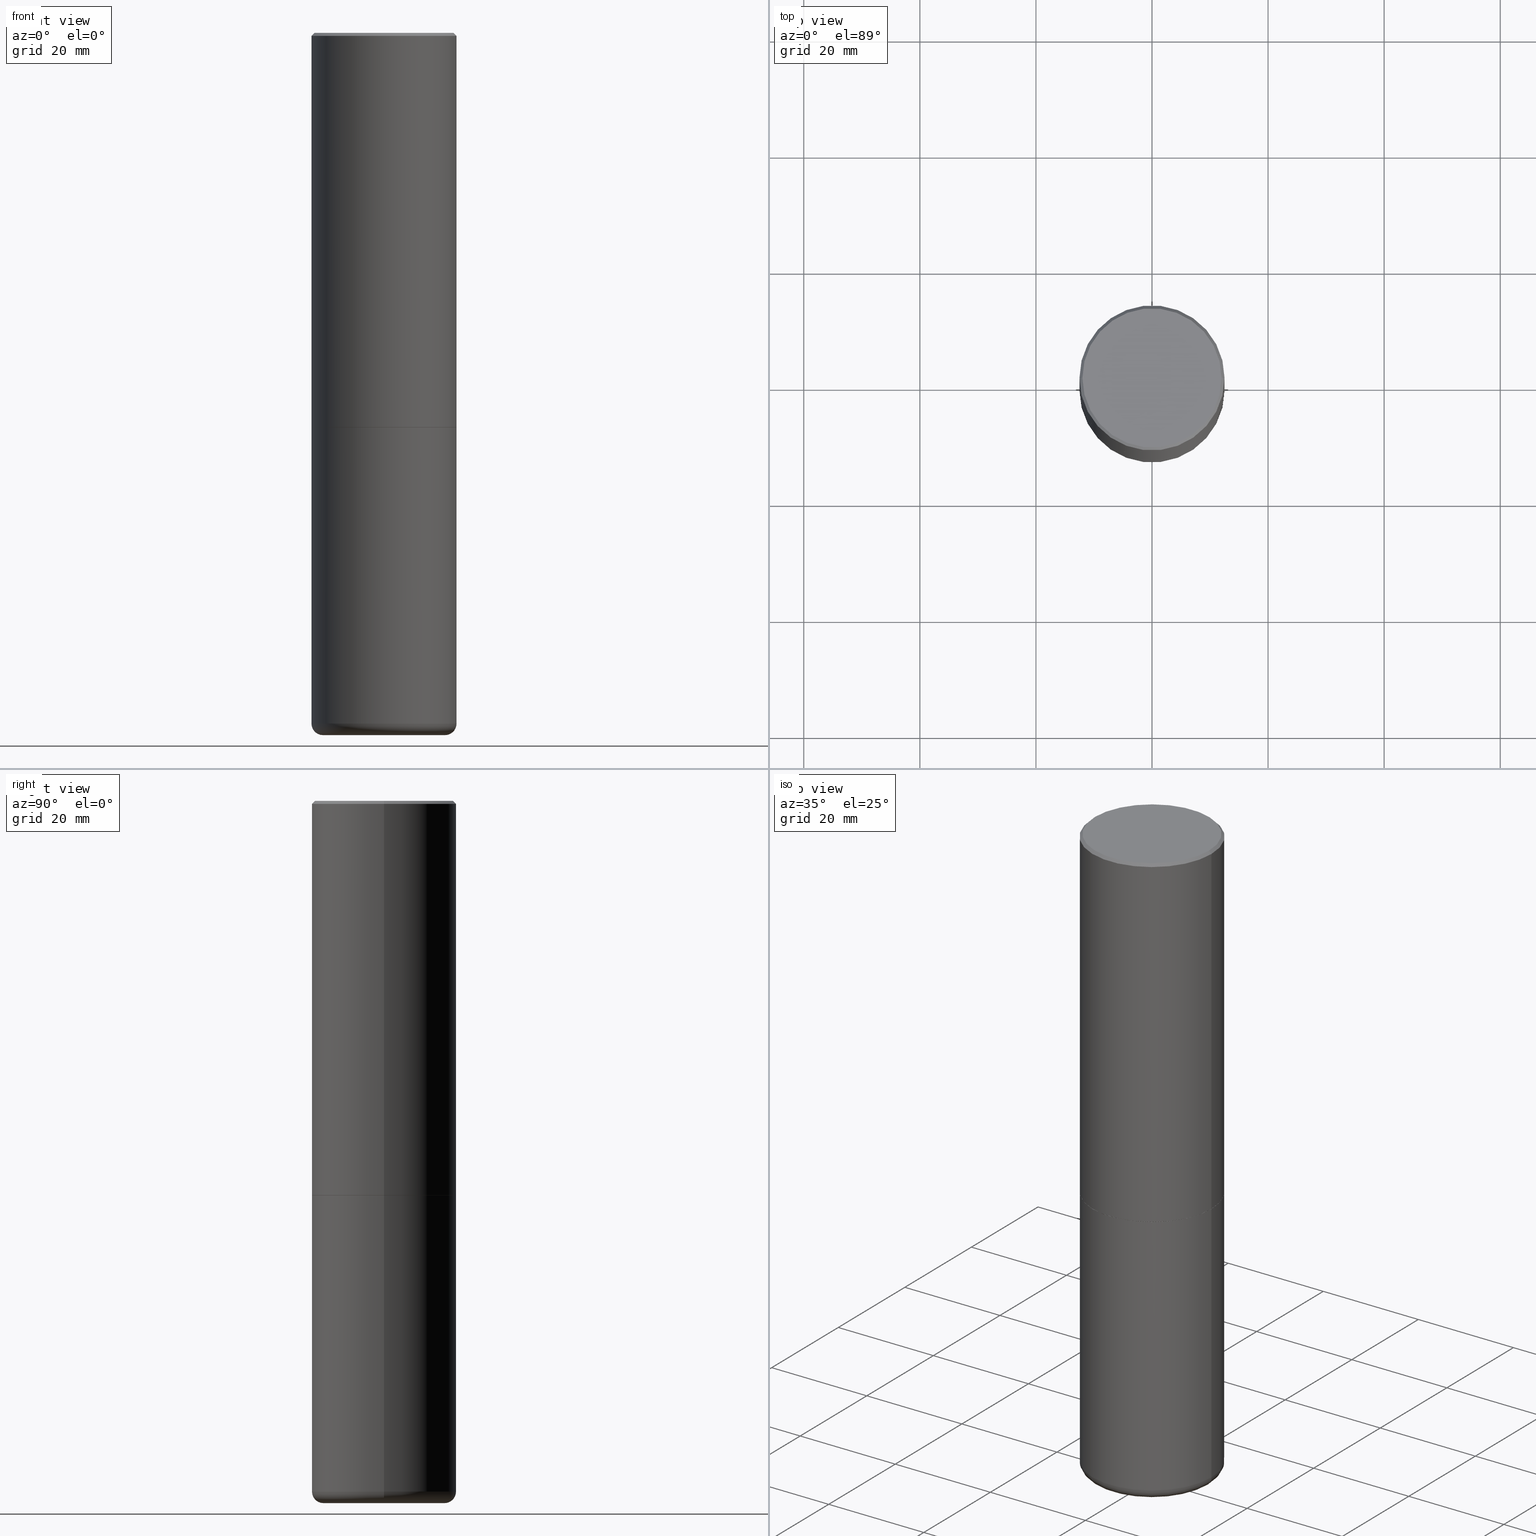
[diagram: canonical four-view strip — front | top / right | iso, engineering-drawing reading convention]
A machine part, canonical four-view strip (front | top / right | iso — engineering-drawing reading convention). The complete STEP part file that produces these views, byte-faithful:
ISO-10303-21;
HEADER;
FILE_DESCRIPTION (( 'STEP AP203' ),
    '1' );
FILE_NAME ('48051.STEP',
    '2024-03-06T19:49:25',
    ( '' ),
    ( '' ),
    'SwSTEP 2.0',
    'SolidWorks 2023',
    '' );
FILE_SCHEMA (( 'CONFIG_CONTROL_DESIGN' ));
ENDSEC;

DATA;
#1 = DIRECTION ( 'NONE',  ( 1.000000000000000000, 0.000000000000000000, 0.000000000000000000 ) ) ;
#2 = CARTESIAN_POINT ( 'NONE',  ( -0.4921499999999999764, 3.366835455046432478E-15, -0.02000000000000010797 ) ) ;
#3 = CIRCLE ( 'NONE', #330, 0.4921499999999999764 ) ;
#4 = LOCAL_TIME ( 14, 49, 25.00000000000000000, #305 ) ;
#5 = EDGE_LOOP ( 'NONE', ( #318, #36, #288, #66 ) ) ;
#6 = DIRECTION ( 'NONE',  ( 1.000000000000000000, -6.982962677686265922E-15, 0.000000000000000000 ) ) ;
#7 = VERTEX_POINT ( 'NONE', #157 ) ;
#8 = DIRECTION ( 'NONE',  ( 1.000000000000000000, -6.982962677686265922E-15, 4.876176775795935793E-29 ) ) ;
#9 = DIRECTION ( 'NONE',  ( -1.000000000000000000, 6.982962677686265922E-15, -4.876176775795935793E-29 ) ) ;
#10 = AXIS2_PLACEMENT_3D ( 'NONE', #30, #310, #383 ) ;
#11 = DIRECTION ( 'NONE',  ( -2.445468806185136597E-29, 3.491481338843145583E-15, 1.000000000000000000 ) ) ;
#12 = UNCERTAINTY_MEASURE_WITH_UNIT (LENGTH_MEASURE( 1.000000000000000082E-05 ), #18, 'distance_accuracy_value', 'NONE');
#13 = EDGE_CURVE ( 'NONE', #280, #351, #110, .T. ) ;
#14 =( LENGTH_UNIT ( ) NAMED_UNIT ( * ) SI_UNIT ( $, .METRE. ) );
#15 = DIRECTION ( 'NONE',  ( 1.000000000000000000, -6.982962677686265133E-15, 0.000000000000000000 ) ) ;
#16 = TOROIDAL_SURFACE ( 'NONE', #392, 0.4134499999999999287, 0.07869999999999972851 ) ;
#17 = DIRECTION ( 'NONE',  ( -2.445468806185136597E-29, 3.491481338843145583E-15, 1.000000000000000000 ) ) ;
#18 =( CONVERSION_BASED_UNIT ( 'INCH', #363 ) LENGTH_UNIT ( ) NAMED_UNIT ( #327 ) );
#19 = CARTESIAN_POINT ( 'NONE',  ( 6.547009087918844463E-29, -9.347393840350864740E-15, -2.677199999999999136 ) ) ;
#20 = AXIS2_PLACEMENT_3D ( 'NONE', #137, #371, #111 ) ;
#21 = CLOSED_SHELL ( 'NONE', ( #162, #326, #233, #47, #303, #178 ) ) ;
#22 = ADVANCED_FACE ( 'NONE', ( #254 ), #140, .T. ) ;
#23 = COORDINATED_UNIVERSAL_TIME_OFFSET ( 5, 0, .BEHIND. ) ;
#24 = ORIENTED_EDGE ( 'NONE', *, *, #155, .T. ) ;
#25 = ORIENTED_EDGE ( 'NONE', *, *, #364, .T. ) ;
#26 = CALENDAR_DATE ( 2024, 6, 3 ) ;
#27 = DIRECTION ( 'NONE',  ( -2.445468806185136597E-29, 3.491481338843145583E-15, 1.000000000000000000 ) ) ;
#28 = ORIENTED_EDGE ( 'NONE', *, *, #404, .T. ) ;
#29 = CIRCLE ( 'NONE', #285, 0.4134499999999999287 ) ;
#30 = CARTESIAN_POINT ( 'NONE',  ( 0.000000000000000000, 0.000000000000000000, 0.000000000000000000 ) ) ;
#31 = PRODUCT_DEFINITION_FORMATION_WITH_SPECIFIED_SOURCE ( 'ANY', '', #163, .NOT_KNOWN. ) ;
#32 = EDGE_CURVE ( 'NONE', #33, #7, #54, .T. ) ;
#33 = VERTEX_POINT ( 'NONE', #216 ) ;
#34 = APPROVAL_STATUS ( 'not_yet_approved' ) ;
#35 = ORIENTED_EDGE ( 'NONE', *, *, #96, .T. ) ;
#36 = ORIENTED_EDGE ( 'NONE', *, *, #32, .T. ) ;
#37 = DIRECTION ( 'NONE',  ( -2.445468806185136877E-29, 3.491481338843145188E-15, 1.000000000000000000 ) ) ;
#38 = EDGE_CURVE ( 'NONE', #251, #380, #308, .T. ) ;
#39 = CYLINDRICAL_SURFACE ( 'NONE', #103, 0.4921499999999999764 ) ;
#40 = CC_DESIGN_DATE_AND_TIME_ASSIGNMENT ( #348, #215, ( #245 ) ) ;
#41 = DIRECTION ( 'NONE',  ( -1.000000000000000000, 6.982962677686265922E-15, -4.876176775795935793E-29 ) ) ;
#42 = ORIENTED_EDGE ( 'NONE', *, *, #304, .T. ) ;
#43 = CARTESIAN_POINT ( 'NONE',  ( 6.547009087918846705E-29, -9.347393840350866318E-15, -2.677199999999999580 ) ) ;
#44 = CIRCLE ( 'NONE', #370, 0.4721500000000000696 ) ;
#45 = LOCAL_TIME ( 14, 49, 25.00000000000000000, #23 ) ;
#46 = CARTESIAN_POINT ( 'NONE',  ( 0.4921499999999999764, -3.436665081823295777E-15, 2.399810400207969603E-29 ) ) ;
#47 = ADVANCED_FACE ( 'NONE', ( #183 ), #56, .T. ) ;
#48 = DIRECTION ( 'NONE',  ( -6.982962677686266711E-15, -1.000000000000000000, 3.491481338843145583E-15 ) ) ;
#49 = FACE_OUTER_BOUND ( 'NONE', #100, .T. ) ;
#50 = VECTOR ( 'NONE', #165, 39.37007874015748143 ) ;
#51 = VERTEX_POINT ( 'NONE', #2 ) ;
#52 = DIRECTION ( 'NONE',  ( 0.7071067811869339303, -2.468850131086304311E-15, 0.7071067811861611041 ) ) ;
#53 = VECTOR ( 'NONE', #67, 39.37007874015748143 ) ;
#54 = CIRCLE ( 'NONE', #389, 0.4921500000000003094 ) ;
#55 = CC_DESIGN_PERSON_AND_ORGANIZATION_ASSIGNMENT ( #350, #62, ( #407 ) ) ;
#56 = CYLINDRICAL_SURFACE ( 'NONE', #10, 0.4921499999999999764 ) ;
#57 = DIRECTION ( 'NONE',  ( -2.445468806185136597E-29, 3.491481338843145583E-15, 1.000000000000000000 ) ) ;
#58 = ORIENTED_EDGE ( 'NONE', *, *, #304, .F. ) ;
#59 = PERSON_AND_ORGANIZATION ( #190, #323 ) ;
#60 = CIRCLE ( 'NONE', #115, 0.07869999999999977014 ) ;
#61 = CARTESIAN_POINT ( 'NONE',  ( 0.4921499999999999764, -3.446223716380122349E-15, -0.02000000000000010797 ) ) ;
#62 = PERSON_AND_ORGANIZATION_ROLE ( 'classification_officer' ) ;
#63 = EDGE_LOOP ( 'NONE', ( #415, #28, #58, #205 ) ) ;
#64 = EDGE_LOOP ( 'NONE', ( #187, #125, #109, #197 ) ) ;
#65 = LINE ( 'NONE', #129, #230 ) ;
#66 = ORIENTED_EDGE ( 'NONE', *, *, #196, .F. ) ;
#67 = DIRECTION ( 'NONE',  ( -2.445468806185136877E-29, 3.491481338843145188E-15, 1.000000000000000000 ) ) ;
#68 =( GEOMETRIC_REPRESENTATION_CONTEXT ( 3 ) GLOBAL_UNCERTAINTY_ASSIGNED_CONTEXT ( ( #12 ) ) GLOBAL_UNIT_ASSIGNED_CONTEXT ( ( #18, #365, #112 ) ) REPRESENTATION_CONTEXT ( 'NONE', 'WORKASPACE' ) );
#69 = EDGE_CURVE ( 'NONE', #94, #223, #120, .T. ) ;
#70 = DIRECTION ( 'NONE',  ( -2.445468806185136597E-29, 3.491481338843145583E-15, 1.000000000000000000 ) ) ;
#71 = LINE ( 'NONE', #46, #53 ) ;
#72 = ORIENTED_EDGE ( 'NONE', *, *, #81, .T. ) ;
#73 = FACE_OUTER_BOUND ( 'NONE', #156, .T. ) ;
#74 = ORIENTED_EDGE ( 'NONE', *, *, #150, .F. ) ;
#75 = DIRECTION ( 'NONE',  ( 1.000000000000000000, -6.982962677686265133E-15, 0.000000000000000000 ) ) ;
#76 = CARTESIAN_POINT ( 'NONE',  ( 1.145726590385798145E-28, -1.635793922061402197E-14, -4.685099999999999376 ) ) ;
#77 = DIRECTION ( 'NONE',  ( 1.000000000000000000, -6.982962677686268288E-15, 0.000000000000000000 ) ) ;
#78 = CIRCLE ( 'NONE', #337, 0.4721500000000000696 ) ;
#79 = CARTESIAN_POINT ( 'NONE',  ( 0.4921499999999999764, -3.446223716380122349E-15, -0.02000000000000010797 ) ) ;
#80 = DIRECTION ( 'NONE',  ( 2.438088387897960049E-29, -3.491481338843145188E-15, -1.000000000000000000 ) ) ;
#81 = EDGE_CURVE ( 'NONE', #380, #51, #355, .T. ) ;
#82 = APPROVAL_DATE_TIME ( #219, #379 ) ;
#83 = DIRECTION ( 'NONE',  ( 1.000000000000000000, -6.982962677686265922E-15, 0.000000000000000000 ) ) ;
#84 = VECTOR ( 'NONE', #171, 39.37007874015748143 ) ;
#85 = APPLICATION_PROTOCOL_DEFINITION ( 'international standard', 'config_control_design', 1994, #263 ) ;
#86 = DIRECTION ( 'NONE',  ( 2.445468806185136597E-29, -3.491481338843145583E-15, -1.000000000000000000 ) ) ;
#87 = ADVANCED_FACE ( 'NONE', ( #244 ), #298, .T. ) ;
#88 = EDGE_LOOP ( 'NONE', ( #135, #199, #152, #331 ) ) ;
#89 = APPROVAL_STATUS ( 'not_yet_approved' ) ;
#90 = DIRECTION ( 'NONE',  ( -2.445468806185136597E-29, 3.491481338843145583E-15, 1.000000000000000000 ) ) ;
#91 = VERTEX_POINT ( 'NONE', #248 ) ;
#92 = DIRECTION ( 'NONE',  ( 0.000000000000000000, 0.000000000000000000, 1.000000000000000000 ) ) ;
#93 = AXIS2_PLACEMENT_3D ( 'NONE', #19, #17, #77 ) ;
#94 = VERTEX_POINT ( 'NONE', #378 ) ;
#95 = FACE_OUTER_BOUND ( 'NONE', #320, .T. ) ;
#96 = EDGE_CURVE ( 'NONE', #7, #33, #362, .T. ) ;
#97 = MANIFOLD_SOLID_BREP ( 'Body-Move/Copy2[1]', #21 ) ;
#98 = ORIENTED_EDGE ( 'NONE', *, *, #104, .T. ) ;
#99 = DIRECTION ( 'NONE',  ( -2.445468806185136597E-29, 3.491481338843145583E-15, 1.000000000000000000 ) ) ;
#100 = EDGE_LOOP ( 'NONE', ( #300, #148 ) ) ;
#101 = CARTESIAN_POINT ( 'NONE',  ( 0.4721500000000000696, -3.342703923013975763E-15, -2.262311619752986034E-16 ) ) ;
#102 = AXIS2_PLACEMENT_3D ( 'NONE', #106, #257, #360 ) ;
#103 = AXIS2_PLACEMENT_3D ( 'NONE', #385, #293, #8 ) ;
#104 = EDGE_CURVE ( 'NONE', #94, #280, #417, .T. ) ;
#105 = FACE_OUTER_BOUND ( 'NONE', #277, .T. ) ;
#106 = CARTESIAN_POINT ( 'NONE',  ( 6.547009087918844463E-29, -9.347393840350864740E-15, -2.677199999999999136 ) ) ;
#107 = CARTESIAN_POINT ( 'NONE',  ( -0.4134499999999999287, -1.327799150377576435E-14, -4.763799999999998924 ) ) ;
#108 = CC_DESIGN_APPROVAL ( #261, ( #245 ) ) ;
#109 = ORIENTED_EDGE ( 'NONE', *, *, #366, .T. ) ;
#110 = CIRCLE ( 'NONE', #402, 0.4921499999999999764 ) ;
#111 = DIRECTION ( 'NONE',  ( 1.000000000000000000, -6.982962677686265922E-15, 4.876176775795935793E-29 ) ) ;
#112 =( NAMED_UNIT ( * ) SI_UNIT ( $, .STERADIAN. ) SOLID_ANGLE_UNIT ( ) );
#113 = EDGE_CURVE ( 'NONE', #316, #177, #262, .T. ) ;
#114 = CARTESIAN_POINT ( 'NONE',  ( 1.145726590385798145E-28, -1.635793922061402197E-14, -4.685099999999999376 ) ) ;
#115 = AXIS2_PLACEMENT_3D ( 'NONE', #302, #48, #75 ) ;
#116 = DIRECTION ( 'NONE',  ( -2.445468806185136877E-29, 3.491481338843145188E-15, 1.000000000000000000 ) ) ;
#117 = DATE_AND_TIME ( #273, #218 ) ;
#118 = DATE_AND_TIME ( #309, #299 ) ;
#119 = EDGE_LOOP ( 'NONE', ( #352, #359 ) ) ;
#120 = CIRCLE ( 'NONE', #342, 0.4921500000000000319 ) ;
#121 = DIRECTION ( 'NONE',  ( -2.445468806185136597E-29, 3.491481338843145583E-15, 1.000000000000000000 ) ) ;
#122 = CALENDAR_DATE ( 2024, 6, 3 ) ;
#123 = PERSON_AND_ORGANIZATION_ROLE ( 'creator' ) ;
#124 = EDGE_LOOP ( 'NONE', ( #35, #235, #158, #344 ) ) ;
#125 = ORIENTED_EDGE ( 'NONE', *, *, #113, .T. ) ;
#126 = CIRCLE ( 'NONE', #138, 0.07869999999999977014 ) ;
#127 = DIRECTION ( 'NONE',  ( -2.438088387897960049E-29, 3.491481338843145188E-15, 1.000000000000000000 ) ) ;
#128 = CLOSED_SHELL ( 'NONE', ( #220, #369, #266, #22, #249, #87, #133, #401 ) ) ;
#129 = CARTESIAN_POINT ( 'NONE',  ( -0.4921499999999999764, 3.366835455046432478E-15, -0.02000000000000010797 ) ) ;
#130 = LINE ( 'NONE', #227, #50 ) ;
#131 = DIRECTION ( 'NONE',  ( -2.445468806185136597E-29, 3.491481338843145583E-15, 1.000000000000000000 ) ) ;
#132 = AXIS2_PLACEMENT_3D ( 'NONE', #76, #172, #15 ) ;
#133 = ADVANCED_FACE ( 'NONE', ( #260 ), #328, .F. ) ;
#134 = DIRECTION ( 'NONE',  ( 1.000000000000000000, -6.982962677686268288E-15, 0.000000000000000000 ) ) ;
#135 = ORIENTED_EDGE ( 'NONE', *, *, #38, .F. ) ;
#136 = DIRECTION ( 'NONE',  ( 1.000000000000000000, -6.982962677686261977E-15, 4.883557194083111780E-29 ) ) ;
#137 = CARTESIAN_POINT ( 'NONE',  ( 0.000000000000000000, 0.000000000000000000, 0.000000000000000000 ) ) ;
#138 = AXIS2_PLACEMENT_3D ( 'NONE', #240, #204, #339 ) ;
#139 = LINE ( 'NONE', #336, #143 ) ;
#140 = CONICAL_SURFACE ( 'NONE', #387, 0.4921499999999999764, 0.7853981633974492782 ) ;
#141 = CARTESIAN_POINT ( 'NONE',  ( -0.4921499999999999764, -9.355730456439111248E-15, -2.677199999999999580 ) ) ;
#142 = FACE_OUTER_BOUND ( 'NONE', #124, .T. ) ;
#143 = VECTOR ( 'NONE', #52, 39.37007874015748143 ) ;
#144 = CC_DESIGN_PERSON_AND_ORGANIZATION_ASSIGNMENT ( #176, #123, ( #245 ) ) ;
#145 = VECTOR ( 'NONE', #276, 39.37007874015748143 ) ;
#146 = COORDINATED_UNIVERSAL_TIME_OFFSET ( 5, 0, .BEHIND. ) ;
#147 = CALENDAR_DATE ( 2024, 6, 3 ) ;
#148 = ORIENTED_EDGE ( 'NONE', *, *, #211, .T. ) ;
#149 = SECURITY_CLASSIFICATION_LEVEL ( 'unclassified' ) ;
#150 = EDGE_CURVE ( 'NONE', #91, #51, #65, .T. ) ;
#151 = AXIS2_PLACEMENT_3D ( 'NONE', #175, #121, #410 ) ;
#152 = ORIENTED_EDGE ( 'NONE', *, *, #150, .T. ) ;
#153 = APPLICATION_PROTOCOL_DEFINITION ( 'international standard', 'config_control_design', 1994, #214 ) ;
#154 = CARTESIAN_POINT ( 'NONE',  ( 1.145726590385798145E-28, -1.635793922061402197E-14, -4.685099999999999376 ) ) ;
#155 = EDGE_CURVE ( 'NONE', #316, #33, #130, .T. ) ;
#156 = EDGE_LOOP ( 'NONE', ( #42, #98, #184, #386 ) ) ;
#157 = CARTESIAN_POINT ( 'NONE',  ( 0.4921500000000003094, -1.278056744083532224E-14, -2.676199999999999690 ) ) ;
#158 = ORIENTED_EDGE ( 'NONE', *, *, #81, .F. ) ;
#159 = CARTESIAN_POINT ( 'NONE',  ( 0.4911499999999999755, -1.277707595949647608E-14, -2.677199999999999136 ) ) ;
#160 = LOCAL_TIME ( 14, 49, 25.00000000000000000, #182 ) ;
#161 = DIRECTION ( 'NONE',  ( -2.445468806185136597E-29, 3.491481338843145583E-15, 1.000000000000000000 ) ) ;
#162 = ADVANCED_FACE ( 'NONE', ( #73 ), #39, .T. ) ;
#163 = PRODUCT ( '48051', '48051', '', ( #382 ) ) ;
#164 = DIRECTION ( 'NONE',  ( 1.000000000000000000, -6.982962677686271444E-15, 0.000000000000000000 ) ) ;
#165 = DIRECTION ( 'NONE',  ( -0.7071067811869339303, 7.493145998871750444E-15, 0.7071067811861611041 ) ) ;
#166 = AXIS2_PLACEMENT_3D ( 'NONE', #194, #290, #9 ) ;
#167 = APPROVAL_PERSON_ORGANIZATION ( #59, #261, #241 ) ;
#168 = DIRECTION ( 'NONE',  ( 1.000000000000000000, -6.982962677686265922E-15, 4.876176775795935793E-29 ) ) ;
#169 = CARTESIAN_POINT ( 'NONE',  ( 0.4134499999999999287, -1.951982472107036283E-14, -4.763799999999998924 ) ) ;
#170 = AXIS2_PLACEMENT_3D ( 'NONE', #377, #27, #278 ) ;
#171 = DIRECTION ( 'NONE',  ( -2.445468806185136877E-29, 3.491481338843145188E-15, 1.000000000000000000 ) ) ;
#172 = DIRECTION ( 'NONE',  ( -2.445468806185136597E-29, 3.491481338843145583E-15, 1.000000000000000000 ) ) ;
#173 = DIRECTION ( 'NONE',  ( 1.000000000000000000, -6.982962677686261977E-15, 4.883557194083111780E-29 ) ) ;
#174 = PERSON_AND_ORGANIZATION ( #190, #323 ) ;
#175 = CARTESIAN_POINT ( 'NONE',  ( 4.890937612370299433E-31, -6.982962677686328587E-17, -0.02000000000000010797 ) ) ;
#176 = PERSON_AND_ORGANIZATION ( #190, #323 ) ;
#177 = VERTEX_POINT ( 'NONE', #159 ) ;
#178 = ADVANCED_FACE ( 'NONE', ( #105 ), #192, .T. ) ;
#179 = CARTESIAN_POINT ( 'NONE',  ( 4.890937612370299433E-31, -6.982962677686328587E-17, -0.02000000000000010797 ) ) ;
#180 = TOROIDAL_SURFACE ( 'NONE', #405, 0.4134499999999999287, 0.07869999999999972851 ) ;
#181 = ORIENTED_EDGE ( 'NONE', *, *, #269, .F. ) ;
#182 = COORDINATED_UNIVERSAL_TIME_OFFSET ( 5, 0, .BEHIND. ) ;
#183 = FACE_OUTER_BOUND ( 'NONE', #283, .T. ) ;
#184 = ORIENTED_EDGE ( 'NONE', *, *, #286, .F. ) ;
#185 = ORIENTED_EDGE ( 'NONE', *, *, #242, .T. ) ;
#186 = CARTESIAN_POINT ( 'NONE',  ( 6.547009087918844463E-29, -9.347393840350864740E-15, -2.677199999999999136 ) ) ;
#187 = ORIENTED_EDGE ( 'NONE', *, *, #155, .F. ) ;
#188 = CIRCLE ( 'NONE', #207, 0.4921499999999999764 ) ;
#189 = FACE_OUTER_BOUND ( 'NONE', #5, .T. ) ;
#190 = PERSON ( 'UNSPECIFIED', 'UNSPECIFIED', 'UNSPECIFIED', ('UNSPECIFIED'), ('UNSPECIFIED'), ('UNSPECIFIED') ) ;
#191 = CARTESIAN_POINT ( 'NONE',  ( -0.4921499999999999764, 3.496936074043332897E-15, -2.420853904668951509E-29 ) ) ;
#192 = PLANE ( 'NONE',  #279 ) ;
#193 = ORIENTED_EDGE ( 'NONE', *, *, #69, .F. ) ;
#194 = CARTESIAN_POINT ( 'NONE',  ( 6.547009087918846705E-29, -9.347393840350866318E-15, -2.677199999999999580 ) ) ;
#195 = VECTOR ( 'NONE', #116, 39.37007874015748143 ) ;
#196 = EDGE_CURVE ( 'NONE', #51, #380, #3, .T. ) ;
#197 = ORIENTED_EDGE ( 'NONE', *, *, #32, .F. ) ;
#198 = LINE ( 'NONE', #270, #84 ) ;
#199 = ORIENTED_EDGE ( 'NONE', *, *, #206, .F. ) ;
#200 = ORIENTED_EDGE ( 'NONE', *, *, #404, .F. ) ;
#201 = CARTESIAN_POINT ( 'NONE',  ( 3.297005828269570364E-15, 0.4721500000000000696, -1.761618495122452208E-15 ) ) ;
#202 = AXIS2_PLACEMENT_3D ( 'NONE', #357, #224, #168 ) ;
#203 = DIRECTION ( 'NONE',  ( -2.445468806185136597E-29, 3.491481338843145583E-15, 1.000000000000000000 ) ) ;
#204 = DIRECTION ( 'NONE',  ( 7.105427357601001859E-15, 1.000000000000000000, -3.491481338843145583E-15 ) ) ;
#205 = ORIENTED_EDGE ( 'NONE', *, *, #275, .F. ) ;
#206 = EDGE_CURVE ( 'NONE', #91, #251, #78, .T. ) ;
#207 = AXIS2_PLACEMENT_3D ( 'NONE', #297, #203, #237 ) ;
#208 = APPROVAL_PERSON_ORGANIZATION ( #174, #329, #307 ) ;
#209 = COORDINATED_UNIVERSAL_TIME_OFFSET ( 5, 0, .BEHIND. ) ;
#210 = DIRECTION ( 'NONE',  ( 1.000000000000000000, -6.982962677686265922E-15, 0.000000000000000000 ) ) ;
#211 = EDGE_CURVE ( 'NONE', #251, #91, #44, .T. ) ;
#212 = PERSON_AND_ORGANIZATION ( #190, #323 ) ;
#213 = CARTESIAN_POINT ( 'NONE',  ( 6.544563619112662223E-29, -9.343902359012024888E-15, -2.676199999999999690 ) ) ;
#214 = APPLICATION_CONTEXT ( 'configuration controlled 3d designs of mechanical parts and assemblies' ) ;
#215 = DATE_TIME_ROLE ( 'creation_date' ) ;
#216 = CARTESIAN_POINT ( 'NONE',  ( -0.4921500000000003094, -1.209929918851106266E-15, -2.676199999999999690 ) ) ;
#217 = VECTOR ( 'NONE', #37, 39.37007874015748143 ) ;
#218 = LOCAL_TIME ( 14, 49, 25.00000000000000000, #146 ) ;
#219 = DATE_AND_TIME ( #122, #4 ) ;
#220 = ADVANCED_FACE ( 'NONE', ( #397 ), #322, .T. ) ;
#221 = CARTESIAN_POINT ( 'NONE',  ( 6.547009087918846705E-29, -9.347393840350866318E-15, -2.677199999999999580 ) ) ;
#222 = DESIGN_CONTEXT ( 'detailed design', #263, 'design' ) ;
#223 = VERTEX_POINT ( 'NONE', #234 ) ;
#224 = DIRECTION ( 'NONE',  ( -2.445468806185136597E-29, 3.491481338843145583E-15, 1.000000000000000000 ) ) ;
#225 = MANIFOLD_SOLID_BREP ( 'Body-Move/Copy2[2]', #128 ) ;
#226 = ORIENTED_EDGE ( 'NONE', *, *, #211, .F. ) ;
#227 = CARTESIAN_POINT ( 'NONE',  ( -0.4911499999999999755, -5.857563193665132851E-15, -2.677199999999999136 ) ) ;
#228 = EDGE_CURVE ( 'NONE', #349, #313, #335, .T. ) ;
#229 = ORIENTED_EDGE ( 'NONE', *, *, #228, .F. ) ;
#230 = VECTOR ( 'NONE', #321, 39.37007874015748143 ) ;
#231 = DIRECTION ( 'NONE',  ( 1.000000000000000000, -6.982962677686266711E-15, 4.875605319575677862E-29 ) ) ;
#232 = CARTESIAN_POINT ( 'NONE',  ( 4.890937612370299433E-31, -6.982962677686328587E-17, -0.02000000000000010797 ) ) ;
#233 = ADVANCED_FACE ( 'NONE', ( #289 ), #361, .F. ) ;
#234 = CARTESIAN_POINT ( 'NONE',  ( 0.4921499999999998098, -1.979460430243731302E-14, -4.685099999999999376 ) ) ;
#235 = ORIENTED_EDGE ( 'NONE', *, *, #306, .T. ) ;
#236 = CC_DESIGN_DATE_AND_TIME_ASSIGNMENT ( #117, #340, ( #407 ) ) ;
#237 = DIRECTION ( 'NONE',  ( 1.000000000000000000, -6.982962677686265922E-15, 0.000000000000000000 ) ) ;
#238 = CARTESIAN_POINT ( 'NONE',  ( -0.4911499999999999755, -5.852264739316910449E-15, -2.677199999999999136 ) ) ;
#239 = AXIS2_PLACEMENT_3D ( 'NONE', #324, #295, #353 ) ;
#240 = CARTESIAN_POINT ( 'NONE',  ( -0.4134499999999999287, -1.342020027961388708E-14, -4.685099999999999376 ) ) ;
#241 = APPROVAL_ROLE ( '' ) ;
#242 = EDGE_CURVE ( 'NONE', #223, #351, #71, .T. ) ;
#243 = DIRECTION ( 'NONE',  ( -2.445468806185136597E-29, 3.491481338843145583E-15, 1.000000000000000000 ) ) ;
#244 = FACE_OUTER_BOUND ( 'NONE', #64, .T. ) ;
#245 = PRODUCT_DEFINITION ( 'UNKNOWN', '', #31, #222 ) ;
#246 = CIRCLE ( 'NONE', #132, 0.4921500000000000319 ) ;
#247 = CARTESIAN_POINT ( 'NONE',  ( 0.000000000000000000, 0.000000000000000000, 0.000000000000000000 ) ) ;
#248 = CARTESIAN_POINT ( 'NONE',  ( -0.4721500000000000696, 3.331920641658001224E-15, -2.262311619753449490E-16 ) ) ;
#249 = ADVANCED_FACE ( 'NONE', ( #189 ), #332, .T. ) ;
#250 = PERSON_AND_ORGANIZATION ( #190, #323 ) ;
#251 = VERTEX_POINT ( 'NONE', #101 ) ;
#252 = PRODUCT_RELATED_PRODUCT_CATEGORY ( 'detail', '', ( #163 ) ) ;
#253 = PERSON_AND_ORGANIZATION_ROLE ( 'design_supplier' ) ;
#254 = FACE_OUTER_BOUND ( 'NONE', #88, .T. ) ;
#255 = AXIS2_PLACEMENT_3D ( 'NONE', #201, #80, #333 ) ;
#256 = ORIENTED_EDGE ( 'NONE', *, *, #364, .F. ) ;
#257 = DIRECTION ( 'NONE',  ( -2.445468806185136597E-29, 3.491481338843145583E-15, 1.000000000000000000 ) ) ;
#258 = CARTESIAN_POINT ( 'NONE',  ( 5.532412495976664402E-45, -7.898818803016371119E-31, -2.262311619753217762E-16 ) ) ;
#259 = ORIENTED_EDGE ( 'NONE', *, *, #38, .T. ) ;
#260 = FACE_OUTER_BOUND ( 'NONE', #413, .T. ) ;
#261 = APPROVAL ( #89, 'UNSPECIFIED' ) ;
#262 = CIRCLE ( 'NONE', #268, 0.4911499999999999755 ) ;
#263 = APPLICATION_CONTEXT ( 'configuration controlled 3d designs of mechanical parts and assemblies' ) ;
#264 = CARTESIAN_POINT ( 'NONE',  ( 5.532412495976664402E-45, -7.898818803016371119E-31, -2.262311619753217762E-16 ) ) ;
#265 = DIRECTION ( 'NONE',  ( -2.445468806185136597E-29, 3.491481338843145583E-15, 1.000000000000000000 ) ) ;
#266 = ADVANCED_FACE ( 'NONE', ( #95 ), #314, .T. ) ;
#267 = PLANE ( 'NONE',  #255 ) ;
#268 = AXIS2_PLACEMENT_3D ( 'NONE', #186, #70, #134 ) ;
#269 = EDGE_CURVE ( 'NONE', #313, #349, #29, .T. ) ;
#270 = CARTESIAN_POINT ( 'NONE',  ( -0.4921500000000000874, 3.496936074043333686E-15, -2.420853904668952350E-29 ) ) ;
#271 = FACE_OUTER_BOUND ( 'NONE', #292, .T. ) ;
#272 = AXIS2_PLACEMENT_3D ( 'NONE', #388, #161, #164 ) ;
#273 = CALENDAR_DATE ( 2024, 6, 3 ) ;
#274 = APPROVAL_DATE_TIME ( #343, #329 ) ;
#275 = EDGE_CURVE ( 'NONE', #313, #223, #60, .T. ) ;
#276 = DIRECTION ( 'NONE',  ( 0.7071067811865482389, -7.319954787623257623E-15, -0.7071067811865467956 ) ) ;
#277 = EDGE_LOOP ( 'NONE', ( #181, #229 ) ) ;
#278 = DIRECTION ( 'NONE',  ( 1.000000000000000000, -6.982962677686268288E-15, 0.000000000000000000 ) ) ;
#279 = AXIS2_PLACEMENT_3D ( 'NONE', #287, #391, #41 ) ;
#280 = VERTEX_POINT ( 'NONE', #141 ) ;
#281 = DIRECTION ( 'NONE',  ( 1.000000000000000000, -6.982962677686265922E-15, 0.000000000000000000 ) ) ;
#282 = APPROVAL_ROLE ( '' ) ;
#283 = EDGE_LOOP ( 'NONE', ( #319, #356, #185, #311 ) ) ;
#284 = CARTESIAN_POINT ( 'NONE',  ( 6.544563619112662223E-29, -9.343902359012024888E-15, -2.676199999999999690 ) ) ;
#285 = AXIS2_PLACEMENT_3D ( 'NONE', #325, #131, #368 ) ;
#286 = EDGE_CURVE ( 'NONE', #351, #280, #188, .T. ) ;
#287 = CARTESIAN_POINT ( 'NONE',  ( 1.604571505845230914E-28, -1.033740983005313699E-14, -4.763799999999998924 ) ) ;
#288 = ORIENTED_EDGE ( 'NONE', *, *, #393, .T. ) ;
#289 = FACE_OUTER_BOUND ( 'NONE', #119, .T. ) ;
#290 = DIRECTION ( 'NONE',  ( 2.438088387897960049E-29, -3.491481338843145188E-15, -1.000000000000000000 ) ) ;
#291 = CIRCLE ( 'NONE', #93, 0.4911499999999999755 ) ;
#292 = EDGE_LOOP ( 'NONE', ( #200, #347, #375, #193 ) ) ;
#293 = DIRECTION ( 'NONE',  ( -2.445468806185136597E-29, 3.491481338843145583E-15, 1.000000000000000000 ) ) ;
#294 = CC_DESIGN_PERSON_AND_ORGANIZATION_ASSIGNMENT ( #212, #317, ( #163 ) ) ;
#295 = DIRECTION ( 'NONE',  ( 2.445468806185136597E-29, -3.491481338843145583E-15, -1.000000000000000000 ) ) ;
#296 = CYLINDRICAL_SURFACE ( 'NONE', #20, 0.4921500000000000874 ) ;
#297 = CARTESIAN_POINT ( 'NONE',  ( 6.547009087918846705E-29, -9.347393840350866318E-15, -2.677199999999999580 ) ) ;
#298 = CONICAL_SURFACE ( 'NONE', #170, 0.4911499999999999755, 0.7853981633979947308 ) ;
#299 = LOCAL_TIME ( 14, 49, 25.00000000000000000, #209 ) ;
#300 = ORIENTED_EDGE ( 'NONE', *, *, #206, .T. ) ;
#301 = FACE_OUTER_BOUND ( 'NONE', #63, .T. ) ;
#302 = CARTESIAN_POINT ( 'NONE',  ( 0.4134499999999999287, -1.924504513970340634E-14, -4.685099999999999376 ) ) ;
#303 = ADVANCED_FACE ( 'NONE', ( #271 ), #16, .T. ) ;
#304 = EDGE_CURVE ( 'NONE', #223, #94, #246, .T. ) ;
#305 = COORDINATED_UNIVERSAL_TIME_OFFSET ( 5, 0, .BEHIND. ) ;
#306 = EDGE_CURVE ( 'NONE', #33, #51, #198, .T. ) ;
#307 = APPROVAL_ROLE ( '' ) ;
#308 = LINE ( 'NONE', #61, #145 ) ;
#309 = CALENDAR_DATE ( 2024, 6, 3 ) ;
#310 = DIRECTION ( 'NONE',  ( -2.445468806185136597E-29, 3.491481338843145583E-15, 1.000000000000000000 ) ) ;
#311 = ORIENTED_EDGE ( 'NONE', *, *, #13, .F. ) ;
#312 = CC_DESIGN_PERSON_AND_ORGANIZATION_ASSIGNMENT ( #374, #253, ( #31 ) ) ;
#313 = VERTEX_POINT ( 'NONE', #169 ) ;
#314 = CONICAL_SURFACE ( 'NONE', #239, 0.4921499999999999764, 0.7853981633974492782 ) ;
#315 = CC_DESIGN_SECURITY_CLASSIFICATION ( #407, ( #31 ) ) ;
#316 = VERTEX_POINT ( 'NONE', #238 ) ;
#317 = PERSON_AND_ORGANIZATION_ROLE ( 'design_owner' ) ;
#318 = ORIENTED_EDGE ( 'NONE', *, *, #306, .F. ) ;
#319 = ORIENTED_EDGE ( 'NONE', *, *, #104, .F. ) ;
#320 = EDGE_LOOP ( 'NONE', ( #226, #259, #72, #74 ) ) ;
#321 = DIRECTION ( 'NONE',  ( -0.7071067811865482389, 2.468850131082264555E-15, -0.7071067811865467956 ) ) ;
#322 = CONICAL_SURFACE ( 'NONE', #102, 0.4911499999999999755, 0.7853981633979947308 ) ;
#323 = ORGANIZATION ( 'UNSPECIFIED', 'UNSPECIFIED', '' ) ;
#324 = CARTESIAN_POINT ( 'NONE',  ( 4.890937612370299433E-31, -6.982962677686328587E-17, -0.02000000000000010797 ) ) ;
#325 = CARTESIAN_POINT ( 'NONE',  ( 1.164972429890475074E-28, -1.663271880198097531E-14, -4.763799999999998924 ) ) ;
#326 = ADVANCED_FACE ( 'NONE', ( #301 ), #180, .T. ) ;
#327 = DIMENSIONAL_EXPONENTS ( 1.000000000000000000, 0.000000000000000000, 0.000000000000000000, 0.000000000000000000, 0.000000000000000000, 0.000000000000000000, 0.000000000000000000 ) ;
#328 = PLANE ( 'NONE',  #414 ) ;
#329 = APPROVAL ( #376, 'UNSPECIFIED' ) ;
#330 = AXIS2_PLACEMENT_3D ( 'NONE', #232, #99, #6 ) ;
#331 = ORIENTED_EDGE ( 'NONE', *, *, #196, .T. ) ;
#332 = CYLINDRICAL_SURFACE ( 'NONE', #202, 0.4921500000000000874 ) ;
#333 = DIRECTION ( 'NONE',  ( -1.000000000000000000, 6.982962677686265922E-15, -4.876176775795935793E-29 ) ) ;
#334 = DIRECTION ( 'NONE',  ( -2.445468806185136597E-29, 3.491481338843145583E-15, 1.000000000000000000 ) ) ;
#335 = CIRCLE ( 'NONE', #272, 0.4134499999999999287 ) ;
#336 = CARTESIAN_POINT ( 'NONE',  ( 0.4911499999999999755, -1.277707595949647608E-14, -2.677199999999999136 ) ) ;
#337 = AXIS2_PLACEMENT_3D ( 'NONE', #264, #11, #231 ) ;
#338 = LINE ( 'NONE', #406, #195 ) ;
#339 = DIRECTION ( 'NONE',  ( -1.000000000000000000, 7.105427357600989237E-15, 0.000000000000000000 ) ) ;
#340 = DATE_TIME_ROLE ( 'classification_date' ) ;
#341 = DIRECTION ( 'NONE',  ( 1.000000000000000000, -6.982962677686265133E-15, 0.000000000000000000 ) ) ;
#342 = AXIS2_PLACEMENT_3D ( 'NONE', #154, #243, #341 ) ;
#343 = DATE_AND_TIME ( #147, #45 ) ;
#344 = ORIENTED_EDGE ( 'NONE', *, *, #393, .F. ) ;
#345 = SHAPE_DEFINITION_REPRESENTATION ( #367, #409 ) ;
#346 = DIRECTION ( 'NONE',  ( -2.445468806185136597E-29, 3.491481338843145583E-15, 1.000000000000000000 ) ) ;
#347 = ORIENTED_EDGE ( 'NONE', *, *, #228, .T. ) ;
#348 = DATE_AND_TIME ( #26, #160 ) ;
#349 = VERTEX_POINT ( 'NONE', #107 ) ;
#350 = PERSON_AND_ORGANIZATION ( #190, #323 ) ;
#351 = VERTEX_POINT ( 'NONE', #403 ) ;
#352 = ORIENTED_EDGE ( 'NONE', *, *, #286, .T. ) ;
#353 = DIRECTION ( 'NONE',  ( -1.000000000000000000, 6.982962677686265922E-15, 0.000000000000000000 ) ) ;
#354 = DIRECTION ( 'NONE',  ( 1.000000000000000000, -6.982962677686266711E-15, 4.875605319575677862E-29 ) ) ;
#355 = CIRCLE ( 'NONE', #151, 0.4921499999999999764 ) ;
#356 = ORIENTED_EDGE ( 'NONE', *, *, #69, .T. ) ;
#357 = CARTESIAN_POINT ( 'NONE',  ( 0.000000000000000000, 0.000000000000000000, 0.000000000000000000 ) ) ;
#358 = CC_DESIGN_PERSON_AND_ORGANIZATION_ASSIGNMENT ( #250, #412, ( #31 ) ) ;
#359 = ORIENTED_EDGE ( 'NONE', *, *, #13, .T. ) ;
#360 = DIRECTION ( 'NONE',  ( 1.000000000000000000, -6.982962677686268288E-15, 0.000000000000000000 ) ) ;
#361 = PLANE ( 'NONE',  #166 ) ;
#362 = CIRCLE ( 'NONE', #398, 0.4921500000000003094 ) ;
#363 = LENGTH_MEASURE_WITH_UNIT ( LENGTH_MEASURE( 0.02539999999999999897 ), #14 );
#364 = EDGE_CURVE ( 'NONE', #177, #316, #291, .T. ) ;
#365 =( NAMED_UNIT ( * ) PLANE_ANGLE_UNIT ( ) SI_UNIT ( $, .RADIAN. ) );
#366 = EDGE_CURVE ( 'NONE', #177, #7, #139, .T. ) ;
#367 = PRODUCT_DEFINITION_SHAPE ( 'NONE', 'NONE',  #245 ) ;
#368 = DIRECTION ( 'NONE',  ( 1.000000000000000000, -6.982962677686271444E-15, 0.000000000000000000 ) ) ;
#369 = ADVANCED_FACE ( 'NONE', ( #142 ), #296, .T. ) ;
#370 = AXIS2_PLACEMENT_3D ( 'NONE', #258, #265, #354 ) ;
#371 = DIRECTION ( 'NONE',  ( -2.445468806185136597E-29, 3.491481338843145583E-15, 1.000000000000000000 ) ) ;
#372 = CC_DESIGN_APPROVAL ( #379, ( #31 ) ) ;
#373 = DIRECTION ( 'NONE',  ( -2.445468806185136597E-29, 3.491481338843145583E-15, 1.000000000000000000 ) ) ;
#374 = PERSON_AND_ORGANIZATION ( #190, #323 ) ;
#375 = ORIENTED_EDGE ( 'NONE', *, *, #275, .T. ) ;
#376 = APPROVAL_STATUS ( 'not_yet_approved' ) ;
#377 = CARTESIAN_POINT ( 'NONE',  ( 6.547009087918844463E-29, -9.347393840350864740E-15, -2.677199999999999136 ) ) ;
#378 = CARTESIAN_POINT ( 'NONE',  ( -0.4921499999999998098, -1.286100314657068829E-14, -4.685099999999999376 ) ) ;
#379 = APPROVAL ( #34, 'UNSPECIFIED' ) ;
#380 = VERTEX_POINT ( 'NONE', #79 ) ;
#381 = DIRECTION ( 'NONE',  ( -1.000000000000000000, 6.982962677686265922E-15, 0.000000000000000000 ) ) ;
#382 = MECHANICAL_CONTEXT ( 'NONE', #214, 'mechanical' ) ;
#383 = DIRECTION ( 'NONE',  ( 1.000000000000000000, -6.982962677686265922E-15, 4.876176775795935793E-29 ) ) ;
#384 = ORIENTED_EDGE ( 'NONE', *, *, #113, .F. ) ;
#385 = CARTESIAN_POINT ( 'NONE',  ( 0.000000000000000000, 0.000000000000000000, 0.000000000000000000 ) ) ;
#386 = ORIENTED_EDGE ( 'NONE', *, *, #242, .F. ) ;
#387 = AXIS2_PLACEMENT_3D ( 'NONE', #179, #86, #381 ) ;
#388 = CARTESIAN_POINT ( 'NONE',  ( 1.164972429890475074E-28, -1.663271880198097531E-14, -4.763799999999998924 ) ) ;
#389 = AXIS2_PLACEMENT_3D ( 'NONE', #284, #90, #210 ) ;
#390 = EDGE_LOOP ( 'NONE', ( #25, #24, #418, #411 ) ) ;
#391 = DIRECTION ( 'NONE',  ( 2.438088387897960049E-29, -3.491481338843145188E-15, -1.000000000000000000 ) ) ;
#392 = AXIS2_PLACEMENT_3D ( 'NONE', #114, #373, #136 ) ;
#393 = EDGE_CURVE ( 'NONE', #7, #380, #338, .T. ) ;
#394 = APPROVAL_PERSON_ORGANIZATION ( #416, #379, #282 ) ;
#395 = CC_DESIGN_APPROVAL ( #329, ( #407 ) ) ;
#396 = DIRECTION ( 'NONE',  ( 1.000000000000000000, -6.982962677686265922E-15, 4.876176775795935793E-29 ) ) ;
#397 = FACE_OUTER_BOUND ( 'NONE', #390, .T. ) ;
#398 = AXIS2_PLACEMENT_3D ( 'NONE', #213, #346, #281 ) ;
#399 = AXIS2_PLACEMENT_3D ( 'NONE', #247, #92, #1 ) ;
#400 = CARTESIAN_POINT ( 'NONE',  ( 1.145726590385798145E-28, -1.635793922061402197E-14, -4.685099999999999376 ) ) ;
#401 = ADVANCED_FACE ( 'NONE', ( #49 ), #267, .F. ) ;
#402 = AXIS2_PLACEMENT_3D ( 'NONE', #221, #57, #83 ) ;
#403 = CARTESIAN_POINT ( 'NONE',  ( 0.4921499999999999764, -1.278405892217416209E-14, -2.677199999999999580 ) ) ;
#404 = EDGE_CURVE ( 'NONE', #349, #94, #126, .T. ) ;
#405 = AXIS2_PLACEMENT_3D ( 'NONE', #400, #334, #173 ) ;
#406 = CARTESIAN_POINT ( 'NONE',  ( 0.4921500000000000874, -3.436665081823296565E-15, 2.399810400207970163E-29 ) ) ;
#407 = SECURITY_CLASSIFICATION ( '', '', #149 ) ;
#408 = APPROVAL_DATE_TIME ( #118, #261 ) ;
#409 = ADVANCED_BREP_SHAPE_REPRESENTATION ( '48051', ( #97, #225, #399 ), #68 ) ;
#410 = DIRECTION ( 'NONE',  ( 1.000000000000000000, -6.982962677686265922E-15, 0.000000000000000000 ) ) ;
#411 = ORIENTED_EDGE ( 'NONE', *, *, #366, .F. ) ;
#412 = PERSON_AND_ORGANIZATION_ROLE ( 'creator' ) ;
#413 = EDGE_LOOP ( 'NONE', ( #256, #384 ) ) ;
#414 = AXIS2_PLACEMENT_3D ( 'NONE', #43, #127, #396 ) ;
#415 = ORIENTED_EDGE ( 'NONE', *, *, #269, .T. ) ;
#416 = PERSON_AND_ORGANIZATION ( #190, #323 ) ;
#417 = LINE ( 'NONE', #191, #217 ) ;
#418 = ORIENTED_EDGE ( 'NONE', *, *, #96, .F. ) ;
ENDSEC;
END-ISO-10303-21;
